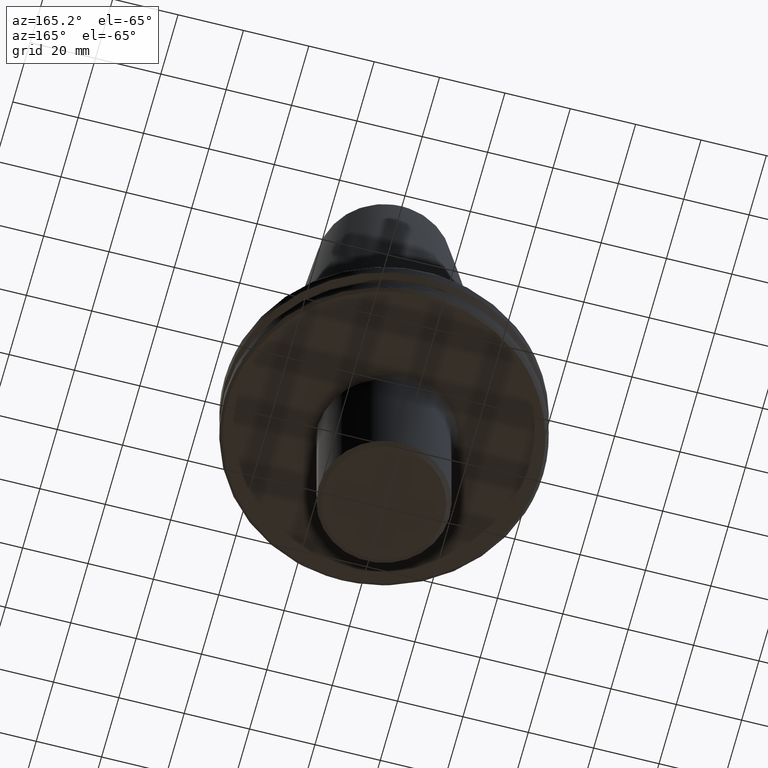
[diagram: clean part render]
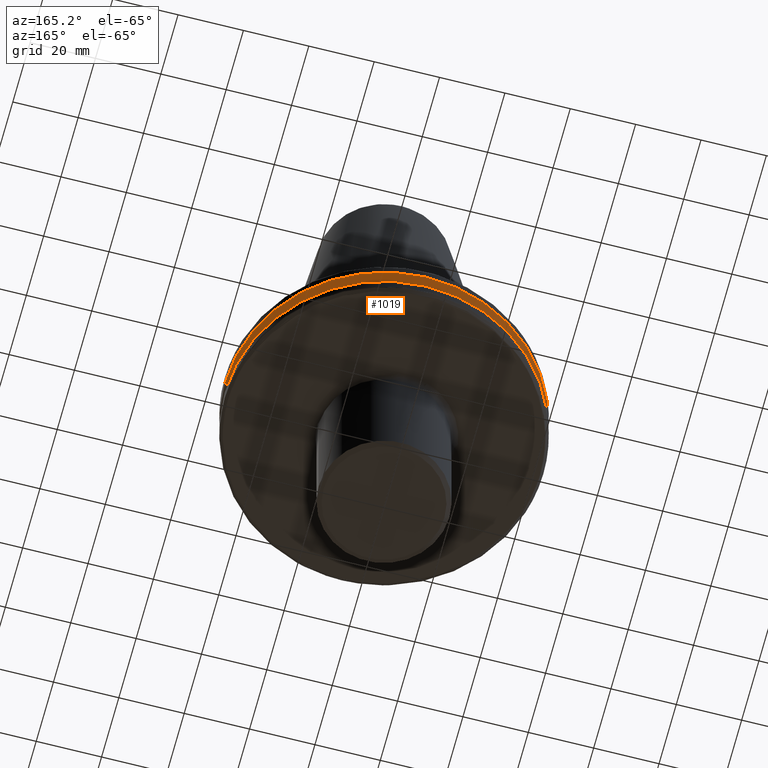
[diagram: same view with one face highlighted and labeled with its STEP entity id]
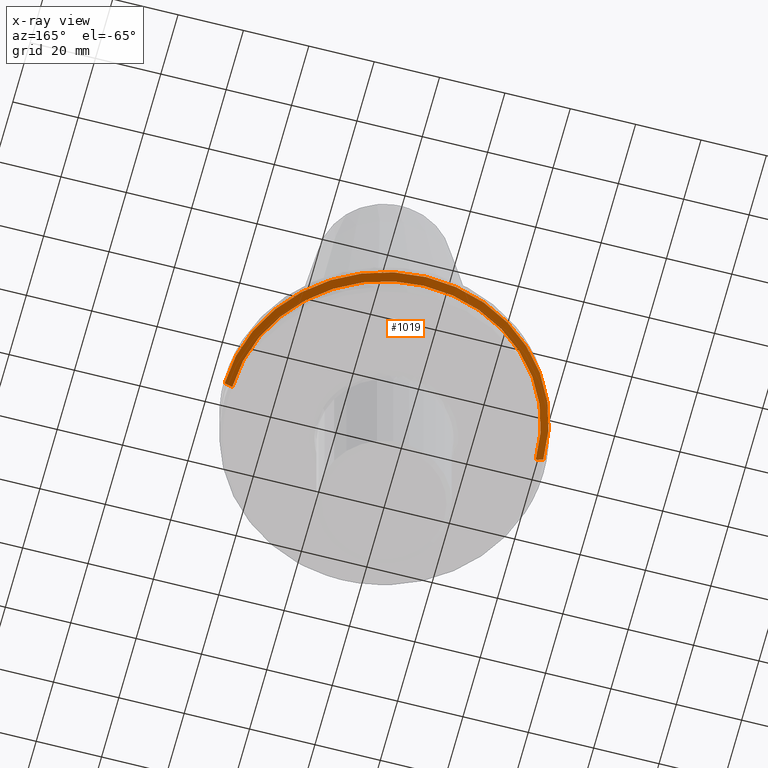
[diagram: x-ray of the same camera — body ghosted, the highlighted face saturated]
A machine part, auxiliary view. The second image highlights one B-rep face of the part: STEP entity #1019.
The next image is the same camera in x-ray: the body ghosted, the highlighted face saturated — about 0% of this face is hidden behind the body in this view.
In plain terms, the highlighted conical surface has half-angle 60 deg.
Its self-contained STEP definition (entity closure, byte-faithful):
#170 = CARTESIAN_POINT ( 'NONE',  ( -46.41589653438085600, 5.827230528940885300E-015, -9.200000000000009900 ) ) ;
#184 = CIRCLE ( 'NONE', #2178, 48.75000000000000000 ) ;
#236 = CARTESIAN_POINT ( 'NONE',  ( 0.0000000000000000000, 0.0000000000000000000, -7.852404735808348400 ) ) ;
#263 = DIRECTION ( 'NONE',  ( -0.8660254037844377100, 1.060575238724905800E-016, 0.5000000000000016700 ) ) ;
#273 = CARTESIAN_POINT ( 'NONE',  ( 48.75000000000000700, 0.0000000000000000000, -7.852404735808348400 ) ) ;
#288 = CARTESIAN_POINT ( 'NONE',  ( -48.75000000000000700, 5.970153145843347900E-015, -7.852404735808348400 ) ) ;
#329 = ORIENTED_EDGE ( 'NONE', *, *, #405, .T. ) ;
#405 = EDGE_CURVE ( 'NONE', #2571, #1627, #2436, .T. ) ;
#501 = CARTESIAN_POINT ( 'NONE',  ( -48.75000000000000000, 5.970153145843347100E-015, -7.852404735808352000 ) ) ;
#547 = DIRECTION ( 'NONE',  ( 0.0000000000000000000, 0.0000000000000000000, 1.000000000000000000 ) ) ;
#720 = EDGE_CURVE ( 'NONE', #1627, #1919, #2651, .T. ) ;
#850 = ORIENTED_EDGE ( 'NONE', *, *, #1792, .F. ) ;
#987 = DIRECTION ( 'NONE',  ( 1.000000000000000000, 0.0000000000000000000, 0.0000000000000000000 ) ) ;
#990 = DIRECTION ( 'NONE',  ( 0.0000000000000000000, 0.0000000000000000000, 1.000000000000000000 ) ) ;
#994 = CARTESIAN_POINT ( 'NONE',  ( 0.0000000000000000000, 0.0000000000000000000, -9.200000000000009900 ) ) ;
#1019 = ADVANCED_FACE ( 'NONE', ( #1108 ), #1366, .T. ) ;
#1032 = VECTOR ( 'NONE', #1734, 1000.000000000000000 ) ;
#1103 = LINE ( 'NONE', #273, #1032 ) ;
#1108 = FACE_OUTER_BOUND ( 'NONE', #2500, .T. ) ;
#1165 = CARTESIAN_POINT ( 'NONE',  ( 46.41589653438085600, 0.0000000000000000000, -9.200000000000009900 ) ) ;
#1366 = CONICAL_SURFACE ( 'NONE', #2999, 48.75000000000000700, 1.047197551196595900 ) ;
#1451 = DIRECTION ( 'NONE',  ( 0.0000000000000000000, 0.0000000000000000000, 1.000000000000000000 ) ) ;
#1627 = VERTEX_POINT ( 'NONE', #170 ) ;
#1660 = ORIENTED_EDGE ( 'NONE', *, *, #2149, .F. ) ;
#1734 = DIRECTION ( 'NONE',  ( 0.8660254037844377100, 0.0000000000000000000, 0.5000000000000016700 ) ) ;
#1792 = EDGE_CURVE ( 'NONE', #2257, #1919, #184, .T. ) ;
#1919 = VERTEX_POINT ( 'NONE', #501 ) ;
#2025 = AXIS2_PLACEMENT_3D ( 'NONE', #994, #990, #987 ) ;
#2130 = DIRECTION ( 'NONE',  ( 1.000000000000000000, 0.0000000000000000000, 0.0000000000000000000 ) ) ;
#2149 = EDGE_CURVE ( 'NONE', #2571, #2257, #1103, .T. ) ;
#2178 = AXIS2_PLACEMENT_3D ( 'NONE', #2618, #1451, #2836 ) ;
#2257 = VERTEX_POINT ( 'NONE', #2902 ) ;
#2436 = CIRCLE ( 'NONE', #2025, 46.41589653438085600 ) ;
#2500 = EDGE_LOOP ( 'NONE', ( #329, #2673, #850, #1660 ) ) ;
#2571 = VERTEX_POINT ( 'NONE', #1165 ) ;
#2607 = VECTOR ( 'NONE', #263, 1000.000000000000000 ) ;
#2618 = CARTESIAN_POINT ( 'NONE',  ( 0.0000000000000000000, 0.0000000000000000000, -7.852404735808352000 ) ) ;
#2651 = LINE ( 'NONE', #288, #2607 ) ;
#2673 = ORIENTED_EDGE ( 'NONE', *, *, #720, .T. ) ;
#2836 = DIRECTION ( 'NONE',  ( 1.000000000000000000, 0.0000000000000000000, 0.0000000000000000000 ) ) ;
#2902 = CARTESIAN_POINT ( 'NONE',  ( 48.75000000000000000, 0.0000000000000000000, -7.852404735808352000 ) ) ;
#2999 = AXIS2_PLACEMENT_3D ( 'NONE', #236, #547, #2130 ) ;